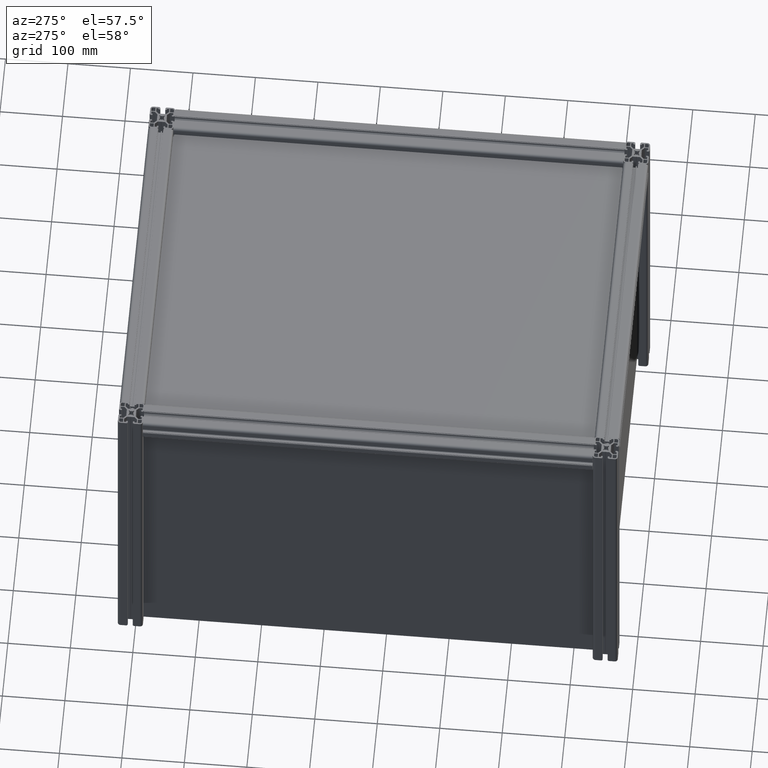
[diagram: clean part render]
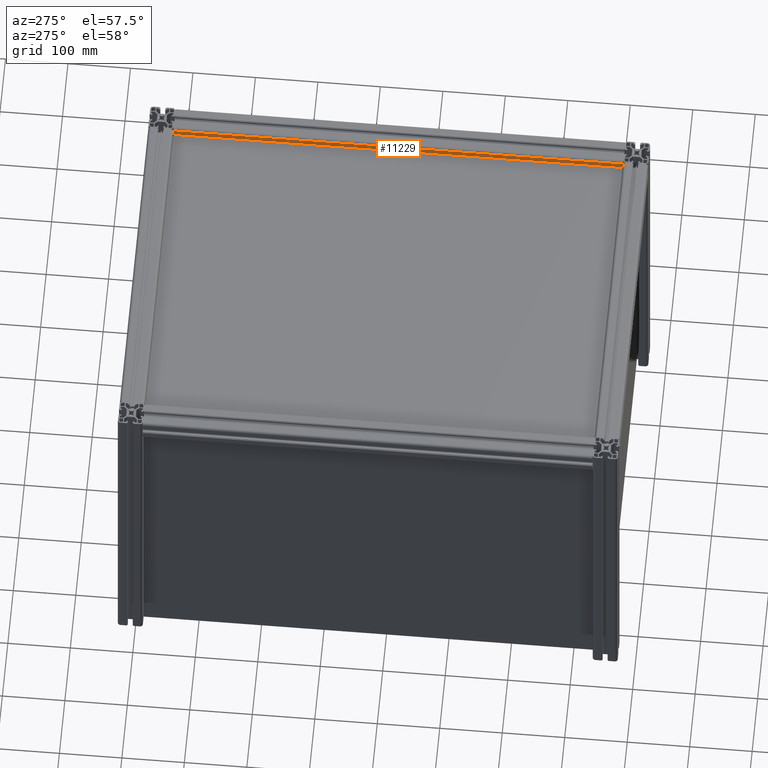
[diagram: same view with one face highlighted and labeled with its STEP entity id]
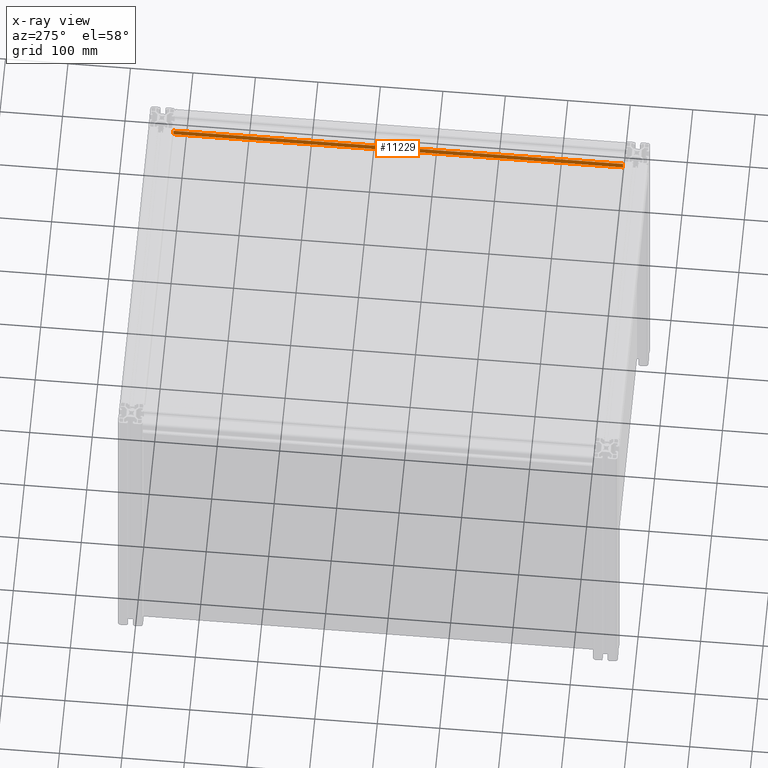
[diagram: x-ray of the same camera — body ghosted, the highlighted face saturated]
A machine part, auxiliary view. The second image highlights one B-rep face of the part: STEP entity #11229.
The next image is the same camera in x-ray: the body ghosted, the highlighted face saturated — about 0% of this face is hidden behind the body in this view.
In plain terms, the highlighted planar face has unit normal (1, -0, 0).
Its self-contained STEP definition (entity closure, byte-faithful):
#1404 = EDGE_CURVE ( 'NONE', #4819, #8894, #10510, .T. ) ;
#1636 = CARTESIAN_POINT ( 'NONE',  ( 15.50000000000000000, -19.99999999999818101, 0.0000000000000000000 ) ) ;
#1683 = EDGE_CURVE ( 'NONE', #8475, #4819, #10493, .T. ) ;
#1687 = DIRECTION ( 'NONE',  ( 1.000000000000000000, 0.0000000000000000000, -0.0000000000000000000 ) ) ;
#1766 = CARTESIAN_POINT ( 'NONE',  ( 5.100000000000363798, -19.99999999999818101, 0.0000000000000000000 ) ) ;
#1852 = ORIENTED_EDGE ( 'NONE', *, *, #1404, .F. ) ;
#2353 = VECTOR ( 'NONE', #13817, 1000.000000000000000 ) ;
#2713 = PLANE ( 'NONE',  #3484 ) ;
#3182 = CARTESIAN_POINT ( 'NONE',  ( 5.100000000000364686, -19.99999999999818101, 0.0000000000000000000 ) ) ;
#3477 = CARTESIAN_POINT ( 'NONE',  ( 5.100000000000364686, -19.99999999999818456, 720.0000000000000000 ) ) ;
#3484 = AXIS2_PLACEMENT_3D ( 'NONE', #6431, #4820, #13788 ) ;
#3870 = CARTESIAN_POINT ( 'NONE',  ( 15.50000000000000000, -19.99999999999818101, 720.0000000000000000 ) ) ;
#4346 = DIRECTION ( 'NONE',  ( 1.000000000000000000, 0.0000000000000000000, -0.0000000000000000000 ) ) ;
#4819 = VERTEX_POINT ( 'NONE', #3477 ) ;
#4820 = DIRECTION ( 'NONE',  ( 0.0000000000000000000, 1.000000000000000000, 0.0000000000000000000 ) ) ;
#5358 = VERTEX_POINT ( 'NONE', #1636 ) ;
#5397 = VECTOR ( 'NONE', #7648, 1000.000000000000000 ) ;
#6431 = CARTESIAN_POINT ( 'NONE',  ( 5.100000000000363798, -19.99999999999818101, 720.0000000000000000 ) ) ;
#7094 = ORIENTED_EDGE ( 'NONE', *, *, #10478, .T. ) ;
#7216 = VECTOR ( 'NONE', #4346, 1000.000000000000000 ) ;
#7648 = DIRECTION ( 'NONE',  ( 0.0000000000000000000, -0.0000000000000000000, 1.000000000000000000 ) ) ;
#8117 = VECTOR ( 'NONE', #1687, 1000.000000000000000 ) ;
#8475 = VERTEX_POINT ( 'NONE', #3182 ) ;
#8852 = FACE_OUTER_BOUND ( 'NONE', #13148, .T. ) ;
#8894 = VERTEX_POINT ( 'NONE', #10539 ) ;
#8936 = CARTESIAN_POINT ( 'NONE',  ( 5.100000000000364686, -19.99999999999818101, 720.0000000000000000 ) ) ;
#10478 = EDGE_CURVE ( 'NONE', #8475, #5358, #13011, .T. ) ;
#10493 = LINE ( 'NONE', #8936, #5397 ) ;
#10510 = LINE ( 'NONE', #15437, #7216 ) ;
#10539 = CARTESIAN_POINT ( 'NONE',  ( 15.50000000000000000, -19.99999999999818456, 720.0000000000000000 ) ) ;
#11229 = ADVANCED_FACE ( 'NONE', ( #8852 ), #2713, .F. ) ;
#12996 = ORIENTED_EDGE ( 'NONE', *, *, #15223, .F. ) ;
#13011 = LINE ( 'NONE', #1766, #8117 ) ;
#13148 = EDGE_LOOP ( 'NONE', ( #1852, #13627, #7094, #12996 ) ) ;
#13627 = ORIENTED_EDGE ( 'NONE', *, *, #1683, .F. ) ;
#13788 = DIRECTION ( 'NONE',  ( 0.0000000000000000000, -0.0000000000000000000, 1.000000000000000000 ) ) ;
#13817 = DIRECTION ( 'NONE',  ( -0.0000000000000000000, -0.0000000000000000000, -1.000000000000000000 ) ) ;
#14956 = LINE ( 'NONE', #3870, #2353 ) ;
#15223 = EDGE_CURVE ( 'NONE', #8894, #5358, #14956, .T. ) ;
#15437 = CARTESIAN_POINT ( 'NONE',  ( -9.799999999999270628, -19.99999999999818456, 720.0000000000000000 ) ) ;